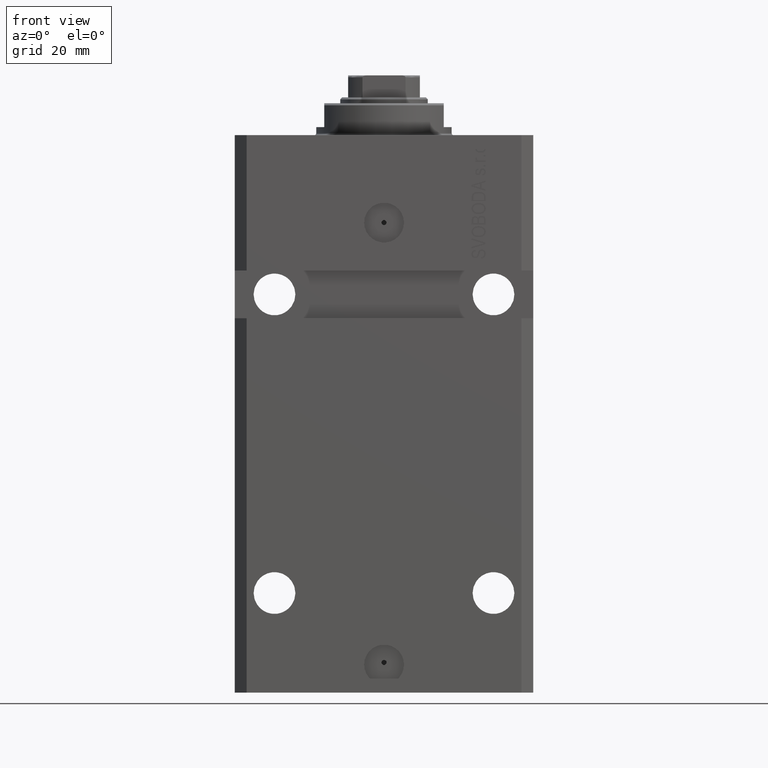
[diagram: clean part render]
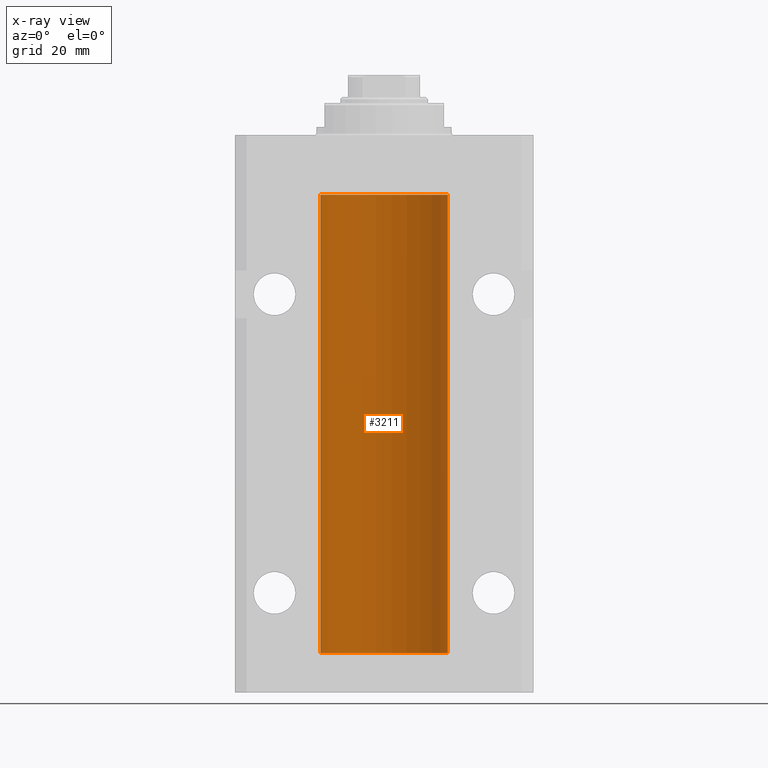
[diagram: x-ray — body ghosted, one internal face saturated and labeled with its STEP entity id]
A machine part, front view, then the same camera in x-ray: the body is ghosted and one INTERNAL B-rep face — a face not visible from any outside direction — is saturated and labeled: STEP entity #3211.
In plain terms, the highlighted cylindrical surface (partial cylindrical patch) has radius 16 mm, axis along (0, 0, 1).
Its self-contained STEP definition (entity closure, byte-faithful):
#263 = VERTEX_POINT ( 'NONE', #11248 ) ;
#1462 = DIRECTION ( 'NONE',  ( 0.000000000000000000, 0.000000000000000000, 1.000000000000000000 ) ) ;
#2206 = CARTESIAN_POINT ( 'NONE',  ( -15.99070653155267685, 0.5573233280232986475, -21.67348148680506625 ) ) ;
#2424 = CARTESIAN_POINT ( 'NONE',  ( -16.00000000000000355, 0.08259886010188438599, -127.3749999999999574 ) ) ;
#2904 = VERTEX_POINT ( 'NONE', #28134 ) ;
#2912 = EDGE_LOOP ( 'NONE', ( #15149, #43802, #20939, #26644, #22986, #10532, #5997, #8781 ) ) ;
#3211 = ADVANCED_FACE ( 'NONE', ( #3606 ), #21817, .F. ) ;
#3594 = CARTESIAN_POINT ( 'NONE',  ( -16.00000000000000000, 1.959434878635765131E-15, -130.0999999999999943 ) ) ;
#3606 = FACE_OUTER_BOUND ( 'NONE', #2912, .T. ) ;
#4300 = DIRECTION ( 'NONE',  ( -0.000000000000000000, -0.000000000000000000, 1.000000000000000000 ) ) ;
#4493 = DIRECTION ( 'NONE',  ( -0.000000000000000000, -0.000000000000000000, 1.000000000000000000 ) ) ;
#4874 = EDGE_CURVE ( 'NONE', #20726, #14218, #20860, .T. ) ;
#5369 = DIRECTION ( 'NONE',  ( 0.000000000000000000, 0.000000000000000000, 1.000000000000000000 ) ) ;
#5535 = VECTOR ( 'NONE', #24699, 1000.000000000000000 ) ;
#5775 = CARTESIAN_POINT ( 'NONE',  ( -15.99934216141748244, 0.1636497843296232380, -127.3912652802930694 ) ) ;
#5997 = ORIENTED_EDGE ( 'NONE', *, *, #7878, .F. ) ;
#6248 = CARTESIAN_POINT ( 'NONE',  ( -15.99548640841682712, 0.3843705577988635880, -127.5004662852700932 ) ) ;
#7138 = EDGE_CURVE ( 'NONE', #20726, #2904, #41800, .T. ) ;
#7878 = EDGE_CURVE ( 'NONE', #263, #10248, #32586, .T. ) ;
#8781 = ORIENTED_EDGE ( 'NONE', *, *, #37566, .T. ) ;
#9366 = CARTESIAN_POINT ( 'NONE',  ( -16.00000000000013145, 3.685127464164956467E-13, -128.6250000000034390 ) ) ;
#9852 = CARTESIAN_POINT ( 'NONE',  ( -15.99548640841683067, 0.3843705577988847377, -21.50046628527008608 ) ) ;
#10058 = CARTESIAN_POINT ( 'NONE',  ( -16.00000000000013145, 3.685127464164956467E-13, -128.6250000000034390 ) ) ;
#10248 = VERTEX_POINT ( 'NONE', #16175 ) ;
#10336 = CARTESIAN_POINT ( 'NONE',  ( -16.00000000000000000, 1.959434878635765131E-15, -130.0999999999999943 ) ) ;
#10532 = ORIENTED_EDGE ( 'NONE', *, *, #40833, .T. ) ;
#11248 = CARTESIAN_POINT ( 'NONE',  ( -16.00000000000000000, -1.314639473218082033E-14, -127.3749999999999858 ) ) ;
#12073 = CARTESIAN_POINT ( 'NONE',  ( -16.00000000000000000, 1.959434878635765131E-15, -130.0999999999999943 ) ) ;
#12084 = DIRECTION ( 'NONE',  ( 1.000000000000000000, 0.000000000000000000, 0.000000000000000000 ) ) ;
#12375 = CIRCLE ( 'NONE', #29968, 16.00000000000000000 ) ;
#12780 = LINE ( 'NONE', #12073, #20639 ) ;
#13441 = CARTESIAN_POINT ( 'NONE',  ( -15.99707730059171240, 0.3150375992092247501, -127.4540233320256561 ) ) ;
#13923 = CARTESIAN_POINT ( 'NONE',  ( -15.99934216141748244, 0.1636497843296417787, -21.39126528029306229 ) ) ;
#14168 = CARTESIAN_POINT ( 'NONE',  ( -15.99711699979842017, 0.3253759916140657737, -22.55856151623175521 ) ) ;
#14218 = VERTEX_POINT ( 'NONE', #10336 ) ;
#14249 = CARTESIAN_POINT ( 'NONE',  ( 16.00000000000000000, 0.000000000000000000, -130.0999999999999943 ) ) ;
#14379 = EDGE_CURVE ( 'NONE', #2904, #17594, #12375, .T. ) ;
#14629 = CARTESIAN_POINT ( 'NONE',  ( -16.00000000000000000, 0.1631714642025800244, -22.62499999999985789 ) ) ;
#15149 = ORIENTED_EDGE ( 'NONE', *, *, #17367, .F. ) ;
#16061 = CARTESIAN_POINT ( 'NONE',  ( -16.00000000000000000, 1.643679961284177128E-16, -21.37499999999999645 ) ) ;
#16175 = CARTESIAN_POINT ( 'NONE',  ( -16.00000000000013145, 3.685127038166941002E-13, -22.62500000000341771 ) ) ;
#17040 = CARTESIAN_POINT ( 'NONE',  ( -15.99070426498503217, 0.5462220647145575869, -128.3146006461414288 ) ) ;
#17295 = CARTESIAN_POINT ( 'NONE',  ( -16.00000000000000711, 0.08259886010189904093, -21.37500000000000000 ) ) ;
#17367 = EDGE_CURVE ( 'NONE', #14218, #42854, #37071, .T. ) ;
#17594 = VERTEX_POINT ( 'NONE', #40580 ) ;
#17978 = CARTESIAN_POINT ( 'NONE',  ( 0.000000000000000000, 0.000000000000000000, -130.0999999999999943 ) ) ;
#19748 = DIRECTION ( 'NONE',  ( -0.000000000000000000, -0.000000000000000000, 1.000000000000000000 ) ) ;
#20392 = CARTESIAN_POINT ( 'NONE',  ( -15.98778717651346604, 0.6250289588122058815, -128.0813158568705603 ) ) ;
#20639 = VECTOR ( 'NONE', #19748, 1000.000000000000000 ) ;
#20642 = CARTESIAN_POINT ( 'NONE',  ( -15.98778717651346071, 0.6250289588122140971, -22.08131585687052478 ) ) ;
#20726 = VERTEX_POINT ( 'NONE', #14249 ) ;
#20860 = CIRCLE ( 'NONE', #39983, 16.00000000000000000 ) ;
#20864 = CARTESIAN_POINT ( 'NONE',  ( -15.99711699979841661, 0.3253759916140733233, -128.5585615162317765 ) ) ;
#20939 = ORIENTED_EDGE ( 'NONE', *, *, #7138, .T. ) ;
#21211 = B_SPLINE_CURVE_WITH_KNOTS ( 'NONE', 3,
 ( #38596, #17295, #13923, #28562, #9852, #2206, #31437, #20642, #31681, #43367, #36192, #14168, #14629, #40007 ),
 .UNSPECIFIED., .F., .F.,
 ( 4, 2, 2, 2, 2, 2, 4 ),
 ( 1.597328219370744179E-19, 0.0002442776652680942405, 0.0004885553305361882643, 0.0009771106610723839011, 0.001221388326340481665, 0.001465665991608579430, 0.001954221322144767369 ),
 .UNSPECIFIED. ) ;
#21817 = CYLINDRICAL_SURFACE ( 'NONE', #29256, 16.00000000000000000 ) ;
#22986 = ORIENTED_EDGE ( 'NONE', *, *, #37032, .F. ) ;
#23581 = CARTESIAN_POINT ( 'NONE',  ( 0.000000000000000000, 0.000000000000000000, -130.0999999999999943 ) ) ;
#24227 = CARTESIAN_POINT ( 'NONE',  ( -15.99070653155267685, 0.5573233280232815501, -127.6734814868050449 ) ) ;
#24458 = CARTESIAN_POINT ( 'NONE',  ( -16.00000000000000000, -1.314639473218082033E-14, -127.3749999999999858 ) ) ;
#24699 = DIRECTION ( 'NONE',  ( -0.000000000000000000, -0.000000000000000000, 1.000000000000000000 ) ) ;
#26644 = ORIENTED_EDGE ( 'NONE', *, *, #14379, .T. ) ;
#28046 = CARTESIAN_POINT ( 'NONE',  ( 0.000000000000000000, 0.000000000000000000, -15.00000000000000000 ) ) ;
#28134 = CARTESIAN_POINT ( 'NONE',  ( 16.00000000000000000, 0.000000000000000000, -15.00000000000000000 ) ) ;
#28562 = CARTESIAN_POINT ( 'NONE',  ( -15.99707730059171240, 0.3150375992092407373, -21.45402333202571654 ) ) ;
#29256 = AXIS2_PLACEMENT_3D ( 'NONE', #17978, #4300, #40227 ) ;
#29968 = AXIS2_PLACEMENT_3D ( 'NONE', #28046, #1462, #38552 ) ;
#31437 = CARTESIAN_POINT ( 'NONE',  ( -15.98779057735153941, 0.6249419637998100407, -21.83670145863507273 ) ) ;
#31681 = CARTESIAN_POINT ( 'NONE',  ( -15.98844267028591482, 0.6088369347963316081, -22.16324735024328518 ) ) ;
#32586 = LINE ( 'NONE', #3594, #5535 ) ;
#33182 = VECTOR ( 'NONE', #34176, 1000.000000000000000 ) ;
#33487 = CARTESIAN_POINT ( 'NONE',  ( -16.00000000000000000, 1.959434878635765131E-15, -130.0999999999999943 ) ) ;
#34176 = DIRECTION ( 'NONE',  ( -0.000000000000000000, -0.000000000000000000, 1.000000000000000000 ) ) ;
#35230 = CARTESIAN_POINT ( 'NONE',  ( -15.98779057735154296, 0.6249419637998029353, -127.8367014586350763 ) ) ;
#36192 = CARTESIAN_POINT ( 'NONE',  ( -15.99228023727724413, 0.5003781296993413674, -22.38347829554236057 ) ) ;
#37032 = EDGE_CURVE ( 'NONE', #44234, #17594, #12780, .T. ) ;
#37071 = LINE ( 'NONE', #33487, #41499 ) ;
#37566 = EDGE_CURVE ( 'NONE', #263, #42854, #43122, .T. ) ;
#38552 = DIRECTION ( 'NONE',  ( 1.000000000000000000, 0.000000000000000000, 0.000000000000000000 ) ) ;
#38596 = CARTESIAN_POINT ( 'NONE',  ( -16.00000000000000000, 1.643679961284177128E-16, -21.37499999999999645 ) ) ;
#39284 = CARTESIAN_POINT ( 'NONE',  ( -15.99228023727723702, 0.5003781296993445871, -128.3834782955424032 ) ) ;
#39983 = AXIS2_PLACEMENT_3D ( 'NONE', #23581, #5369, #12084 ) ;
#40007 = CARTESIAN_POINT ( 'NONE',  ( -16.00000000000013145, 3.685127038166941002E-13, -22.62500000000341771 ) ) ;
#40227 = DIRECTION ( 'NONE',  ( 1.000000000000000000, 0.000000000000000000, 0.000000000000000000 ) ) ;
#40580 = CARTESIAN_POINT ( 'NONE',  ( -16.00000000000000000, 1.959434878635765131E-15, -15.00000000000000000 ) ) ;
#40833 = EDGE_CURVE ( 'NONE', #44234, #10248, #21211, .T. ) ;
#41499 = VECTOR ( 'NONE', #4493, 1000.000000000000000 ) ;
#41800 = LINE ( 'NONE', #44451, #33182 ) ;
#42854 = VERTEX_POINT ( 'NONE', #10058 ) ;
#42873 = CARTESIAN_POINT ( 'NONE',  ( -15.98844267028591482, 0.6088369347963276113, -128.1632473502432674 ) ) ;
#43122 = B_SPLINE_CURVE_WITH_KNOTS ( 'NONE', 3,
 ( #24458, #2424, #5775, #13441, #6248, #24227, #35230, #20392, #42873, #17040, #39284, #20864, #45757, #9366 ),
 .UNSPECIFIED., .F., .F.,
 ( 4, 2, 2, 2, 2, 2, 4 ),
 ( 2.457764170500729066E-18, 0.0002442776652680811759, 0.0004885553305361599666, 0.0009771106610723173311, 0.001221388326340437647, 0.001465665991608557962, 0.001954221322144799027 ),
 .UNSPECIFIED. ) ;
#43367 = CARTESIAN_POINT ( 'NONE',  ( -15.99070426498503217, 0.5462220647145618058, -22.31460064614143590 ) ) ;
#43802 = ORIENTED_EDGE ( 'NONE', *, *, #4874, .F. ) ;
#44234 = VERTEX_POINT ( 'NONE', #16061 ) ;
#44451 = CARTESIAN_POINT ( 'NONE',  ( 16.00000000000000000, 0.000000000000000000, -130.0999999999999943 ) ) ;
#45757 = CARTESIAN_POINT ( 'NONE',  ( -15.99999999999999289, 0.1631714642025817730, -128.6249999999999147 ) ) ;